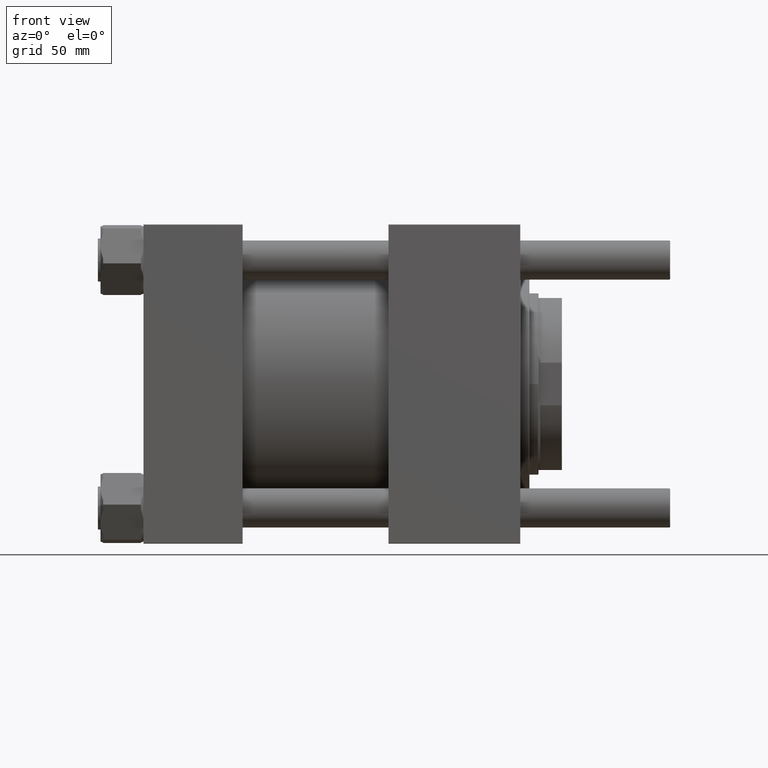
[diagram: clean part render]
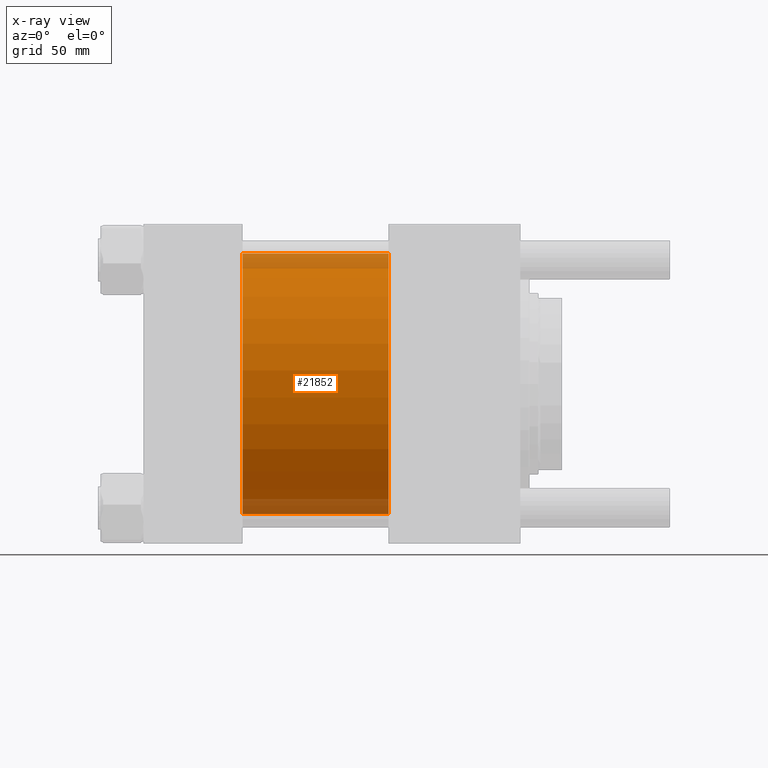
[diagram: x-ray — body ghosted, one internal face saturated and labeled with its STEP entity id]
A machine part, front view, then the same camera in x-ray: the body is ghosted and one INTERNAL B-rep face — a face not visible from any outside direction — is saturated and labeled: STEP entity #21852.
In plain terms, the highlighted cylindrical surface (partial cylindrical patch) has radius 100 mm, axis along (-1, -0, -0).
Its self-contained STEP definition (entity closure, byte-faithful):
#138 = CYLINDRICAL_SURFACE ( 'NONE', #16191, 100.0000000000000000 ) ;
#169 = ORIENTED_EDGE ( 'NONE', *, *, #24535, .T. ) ;
#623 = CIRCLE ( 'NONE', #26539, 100.0000000000000000 ) ;
#1038 = DIRECTION ( 'NONE',  ( 1.000000000000000000, 0.000000000000000000, 0.000000000000000000 ) ) ;
#4488 = CARTESIAN_POINT ( 'NONE',  ( 188.0000000000000000, -2.602085213965210642E-15, 0.000000000000000000 ) ) ;
#4823 = CARTESIAN_POINT ( 'NONE',  ( 76.00000000000000000, -2.602085213965210642E-15, 0.000000000000000000 ) ) ;
#5337 = CARTESIAN_POINT ( 'NONE',  ( 188.0000000000000000, 9.644382777508321529E-15, -100.0000000000000000 ) ) ;
#6323 = VECTOR ( 'NONE', #18722, 1000.000000000000000 ) ;
#14132 = DIRECTION ( 'NONE',  ( 0.000000000000000000, 0.000000000000000000, -1.000000000000000000 ) ) ;
#16191 = AXIS2_PLACEMENT_3D ( 'NONE', #4488, #56841, #49048 ) ;
#18722 = DIRECTION ( 'NONE',  ( -1.000000000000000000, -0.000000000000000000, -0.000000000000000000 ) ) ;
#18847 = EDGE_CURVE ( 'NONE', #52150, #49511, #19236, .T. ) ;
#19236 = LINE ( 'NONE', #5337, #29954 ) ;
#20876 = CARTESIAN_POINT ( 'NONE',  ( 76.00000000000000000, -2.602085213965210642E-15, 100.0000000000000000 ) ) ;
#21852 = ADVANCED_FACE ( 'NONE', ( #57135 ), #138, .F. ) ;
#23005 = DIRECTION ( 'NONE',  ( -1.000000000000000000, -0.000000000000000000, -0.000000000000000000 ) ) ;
#24535 = EDGE_CURVE ( 'NONE', #27693, #52150, #52148, .T. ) ;
#26539 = AXIS2_PLACEMENT_3D ( 'NONE', #4823, #1038, #44474 ) ;
#27234 = CARTESIAN_POINT ( 'NONE',  ( 76.00000000000000000, 9.644382777508321529E-15, -100.0000000000000000 ) ) ;
#27693 = VERTEX_POINT ( 'NONE', #32627 ) ;
#28559 = CARTESIAN_POINT ( 'NONE',  ( 188.0000000000000000, -2.602085213965210642E-15, 100.0000000000000000 ) ) ;
#29954 = VECTOR ( 'NONE', #23005, 1000.000000000000000 ) ;
#32627 = CARTESIAN_POINT ( 'NONE',  ( 188.0000000000000000, -2.602085213965210642E-15, 100.0000000000000000 ) ) ;
#33438 = CARTESIAN_POINT ( 'NONE',  ( 188.0000000000000000, -2.602085213965210642E-15, 0.000000000000000000 ) ) ;
#34175 = EDGE_LOOP ( 'NONE', ( #169, #40623, #35218, #34642 ) ) ;
#34642 = ORIENTED_EDGE ( 'NONE', *, *, #56581, .F. ) ;
#35218 = ORIENTED_EDGE ( 'NONE', *, *, #47258, .F. ) ;
#36135 = DIRECTION ( 'NONE',  ( 1.000000000000000000, 0.000000000000000000, 0.000000000000000000 ) ) ;
#36481 = CARTESIAN_POINT ( 'NONE',  ( 188.0000000000000000, 9.644382777508321529E-15, -100.0000000000000000 ) ) ;
#40623 = ORIENTED_EDGE ( 'NONE', *, *, #18847, .T. ) ;
#44474 = DIRECTION ( 'NONE',  ( 0.000000000000000000, 0.000000000000000000, -1.000000000000000000 ) ) ;
#45340 = LINE ( 'NONE', #28559, #6323 ) ;
#47258 = EDGE_CURVE ( 'NONE', #54255, #49511, #623, .T. ) ;
#49048 = DIRECTION ( 'NONE',  ( 0.000000000000000000, 0.000000000000000000, 1.000000000000000000 ) ) ;
#49511 = VERTEX_POINT ( 'NONE', #27234 ) ;
#52148 = CIRCLE ( 'NONE', #52261, 100.0000000000000000 ) ;
#52150 = VERTEX_POINT ( 'NONE', #36481 ) ;
#52261 = AXIS2_PLACEMENT_3D ( 'NONE', #33438, #36135, #14132 ) ;
#54255 = VERTEX_POINT ( 'NONE', #20876 ) ;
#56581 = EDGE_CURVE ( 'NONE', #27693, #54255, #45340, .T. ) ;
#56841 = DIRECTION ( 'NONE',  ( -1.000000000000000000, -0.000000000000000000, -0.000000000000000000 ) ) ;
#57135 = FACE_OUTER_BOUND ( 'NONE', #34175, .T. ) ;